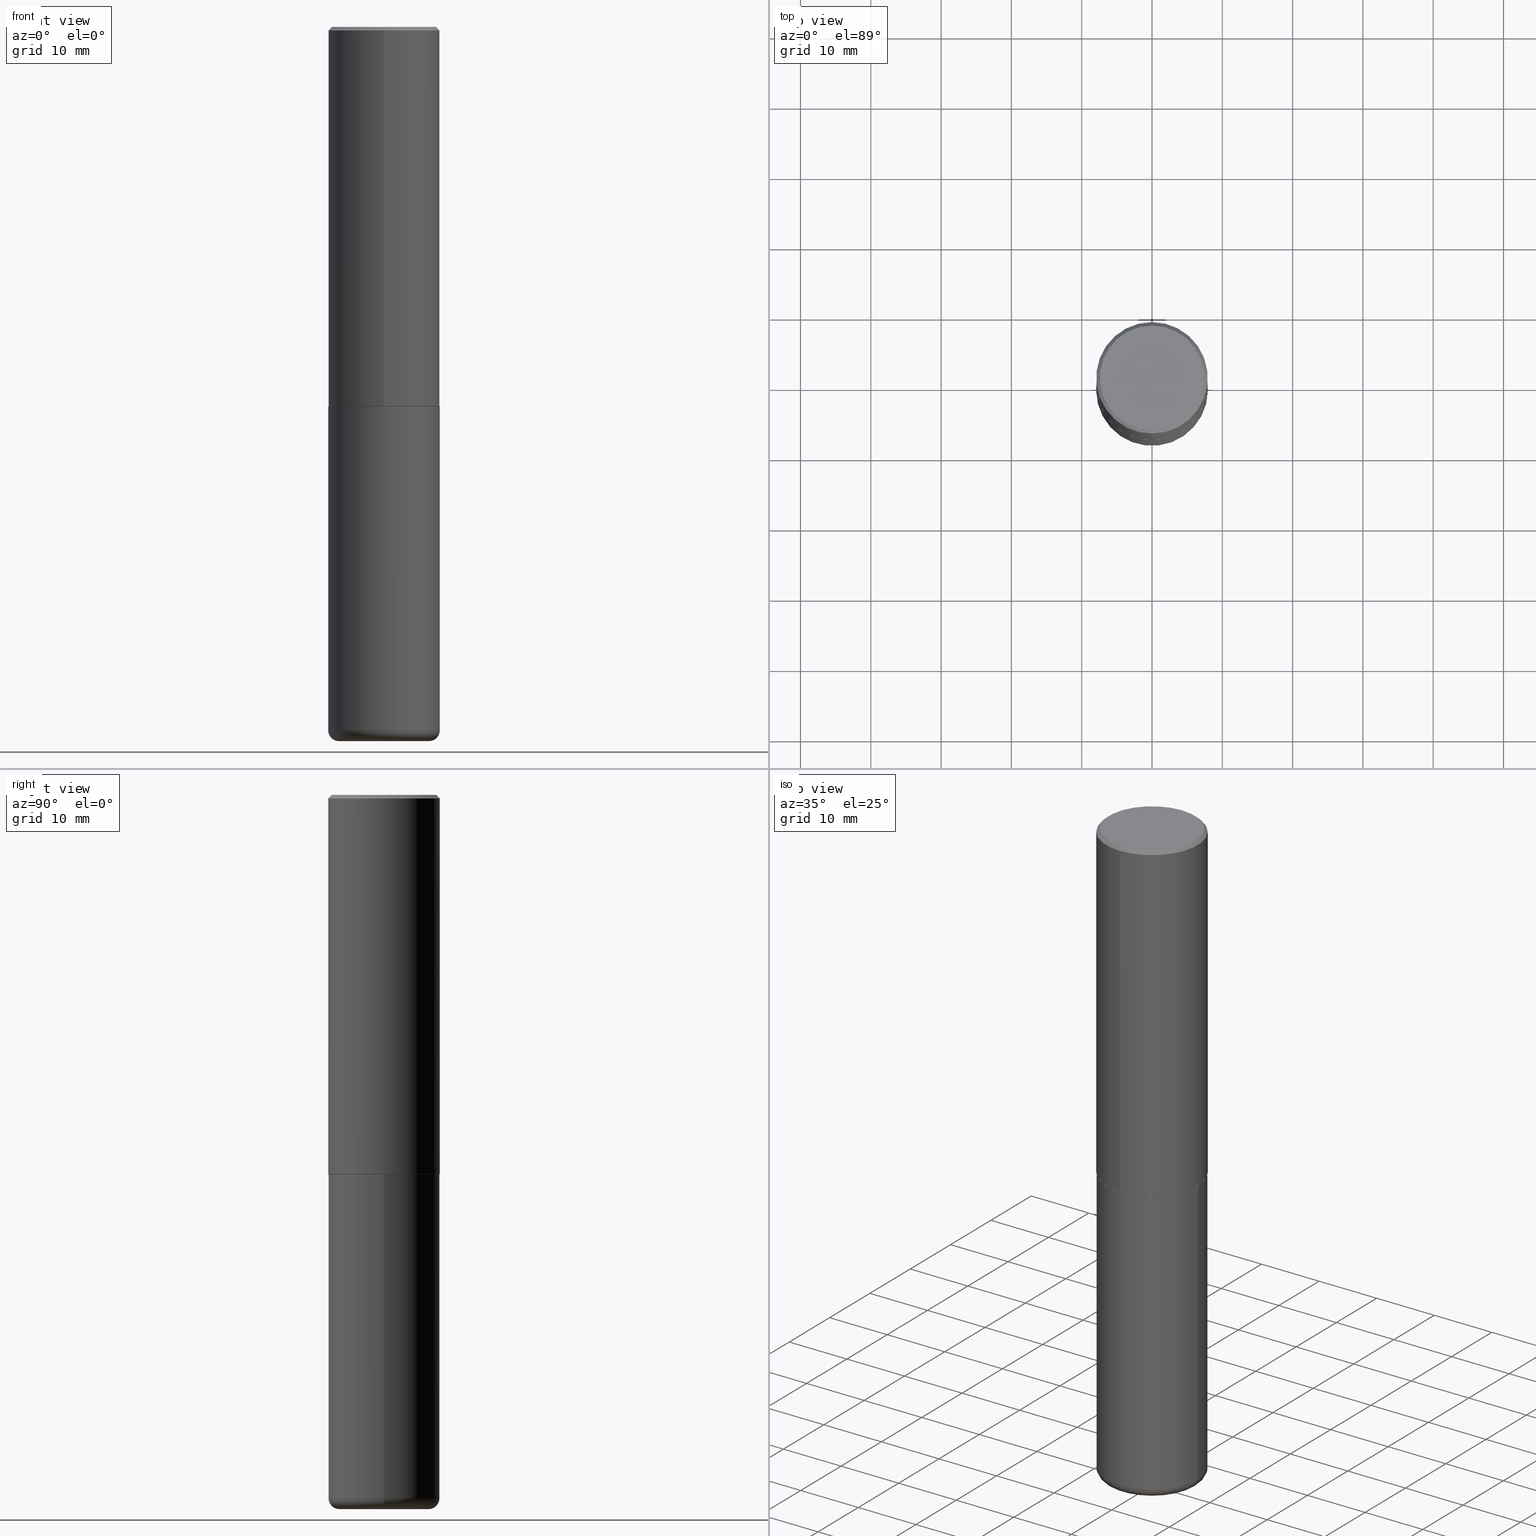
[diagram: canonical four-view strip — front | top / right | iso, engineering-drawing reading convention]
A machine part, canonical four-view strip (front | top / right | iso — engineering-drawing reading convention). The complete STEP part file that produces these views, byte-faithful:
ISO-10303-21;
HEADER;
FILE_DESCRIPTION (( 'STEP AP203' ),
    '1' );
FILE_NAME ('37600.STEP',
    '2024-03-02T05:30:04',
    ( '' ),
    ( '' ),
    'SwSTEP 2.0',
    'SolidWorks 2023',
    '' );
FILE_SCHEMA (( 'CONFIG_CONTROL_DESIGN' ));
ENDSEC;

DATA;
#1 = AXIS2_PLACEMENT_3D ( 'NONE', #57, #167, #174 ) ;
#2 = DIRECTION ( 'NONE',  ( 6.982962677686265922E-15, 1.000000000000000000, -3.492364022149836358E-15 ) ) ;
#3 = EDGE_LOOP ( 'NONE', ( #254, #159, #224, #261 ) ) ;
#4 = LINE ( 'NONE', #130, #134 ) ;
#5 = DIRECTION ( 'NONE',  ( -2.444852431726452894E-29, 3.492364022149836358E-15, 1.000000000000000000 ) ) ;
#6 = DIRECTION ( 'NONE',  ( 1.000000000000000000, -6.982962677686265133E-15, 0.000000000000000000 ) ) ;
#7 = CIRCLE ( 'NONE', #257, 0.3125000000000002776 ) ;
#8 = CARTESIAN_POINT ( 'NONE',  ( -0.2525000000000000022, -1.185389768668500455E-14, -4.000000000000000888 ) ) ;
#9 = AXIS2_PLACEMENT_3D ( 'NONE', #69, #395, #193 ) ;
#10 = EDGE_CURVE ( 'NONE', #76, #321, #50, .T. ) ;
#11 = CARTESIAN_POINT ( 'NONE',  ( 9.635147096369438236E-29, -1.375643647504199401E-14, -3.939999999999999947 ) ) ;
#12 = APPROVAL_ROLE ( '' ) ;
#13 = FACE_OUTER_BOUND ( 'NONE', #328, .T. ) ;
#14 = ORIENTED_EDGE ( 'NONE', *, *, #42, .T. ) ;
#15 = EDGE_LOOP ( 'NONE', ( #360, #295, #334, #294 ) ) ;
#16 = CARTESIAN_POINT ( 'NONE',  ( 5.195311417418712329E-29, -7.421273547068401324E-15, -2.124999999999999556 ) ) ;
#17 = AXIS2_PLACEMENT_3D ( 'NONE', #336, #49, #403 ) ;
#18 = PRODUCT ( '37600', '37600', '', ( #115 ) ) ;
#19 = DIRECTION ( 'NONE',  ( -2.445468806185136597E-29, 3.491481338843145583E-15, 1.000000000000000000 ) ) ;
#20 = PLANE ( 'NONE',  #189 ) ;
#21 = DIRECTION ( 'NONE',  ( -2.445468806185136597E-29, 3.491481338843145583E-15, 1.000000000000000000 ) ) ;
#22 = TOROIDAL_SURFACE ( 'NONE', #1, 0.2525000000000000022, 0.06000000000000023370 ) ;
#23 = VECTOR ( 'NONE', #154, 39.37007874015748143 ) ;
#24 = APPROVAL_STATUS ( 'not_yet_approved' ) ;
#25 = APPLICATION_PROTOCOL_DEFINITION ( 'international standard', 'config_control_design', 1994, #122 ) ;
#26 = FACE_OUTER_BOUND ( 'NONE', #119, .T. ) ;
#27 = CC_DESIGN_PERSON_AND_ORGANIZATION_ASSIGNMENT ( #412, #270, ( #385 ) ) ;
#28 = DATE_AND_TIME ( #338, #222 ) ;
#29 = CARTESIAN_POINT ( 'NONE',  ( 2.213340621892763743E-15, 0.3114999999999925606, -2.125000000000000888 ) ) ;
#30 = LINE ( 'NONE', #281, #93 ) ;
#31 = AXIS2_PLACEMENT_3D ( 'NONE', #269, #142, #145 ) ;
#32 = CIRCLE ( 'NONE', #202, 0.3114999999999999991 ) ;
#33 = CC_DESIGN_DATE_AND_TIME_ASSIGNMENT ( #402, #390, ( #347 ) ) ;
#34 = DIRECTION ( 'NONE',  ( 1.000000000000000000, 0.000000000000000000, 0.000000000000000000 ) ) ;
#35 = DIRECTION ( 'NONE',  ( -2.445468806185136877E-29, 3.491481338843145188E-15, 1.000000000000000000 ) ) ;
#36 = ORIENTED_EDGE ( 'NONE', *, *, #70, .F. ) ;
#37 = DIRECTION ( 'NONE',  ( -4.937700262165053702E-15, -0.7071067811866175168, 0.7071067811864775177 ) ) ;
#38 = AXIS2_PLACEMENT_3D ( 'NONE', #406, #409, #366 ) ;
#39 = CC_DESIGN_APPROVAL ( #183, ( #347 ) ) ;
#40 = EDGE_LOOP ( 'NONE', ( #103, #101, #397, #256 ) ) ;
#41 = ORIENTED_EDGE ( 'NONE', *, *, #339, .T. ) ;
#42 = EDGE_CURVE ( 'NONE', #74, #68, #149, .T. ) ;
#43 = CARTESIAN_POINT ( 'NONE',  ( -0.2525000000000000022, -1.196231606724773985E-14, -3.939999999999999947 ) ) ;
#44 = EDGE_CURVE ( 'NONE', #133, #400, #228, .T. ) ;
#45 = VERTEX_POINT ( 'NONE', #358 ) ;
#46 = PERSON_AND_ORGANIZATION ( #272, #210 ) ;
#47 = ORIENTED_EDGE ( 'NONE', *, *, #205, .F. ) ;
#48 = PLANE ( 'NONE',  #104 ) ;
#49 = DIRECTION ( 'NONE',  ( -2.445468806185136597E-29, 3.491481338843145583E-15, 1.000000000000000000 ) ) ;
#50 = CIRCLE ( 'NONE', #283, 0.3125000000000000000 ) ;
#51 = DATE_AND_TIME ( #60, #235 ) ;
#52 = ADVANCED_FACE ( 'NONE', ( #331 ), #182, .T. ) ;
#53 = DIRECTION ( 'NONE',  ( -6.982962677686265133E-15, -1.000000000000000000, 3.492364022149836358E-15 ) ) ;
#54 = EDGE_CURVE ( 'NONE', #137, #332, #7, .T. ) ;
#55 = DIRECTION ( 'NONE',  ( -6.982962677686265922E-15, -1.000000000000000000, 3.492364022149836358E-15 ) ) ;
#56 = ADVANCED_FACE ( 'NONE', ( #26 ), #98, .T. ) ;
#57 = CARTESIAN_POINT ( 'NONE',  ( 9.635147096369438236E-29, -1.375643647504199401E-14, -3.939999999999999947 ) ) ;
#58 = AXIS2_PLACEMENT_3D ( 'NONE', #405, #271, #238 ) ;
#59 = VECTOR ( 'NONE', #375, 39.37007874015748143 ) ;
#60 = CALENDAR_DATE ( 2024, 2, 3 ) ;
#61 = CARTESIAN_POINT ( 'NONE',  ( 2.182175836776958741E-15, 0.3124999999999999445, -0.02000000000000116268 ) ) ;
#62 = CARTESIAN_POINT ( 'NONE',  ( -0.3125000000000001665, -1.153599042579167936E-14, -3.939999999999999947 ) ) ;
#63 = CLOSED_SHELL ( 'NONE', ( #100, #95, #170, #111, #52, #413 ) ) ;
#64 = LOCAL_TIME ( 0, 30, 4.000000000000000000, #320 ) ;
#65 =( NAMED_UNIT ( * ) SI_UNIT ( $, .STERADIAN. ) SOLID_ANGLE_UNIT ( ) );
#66 = PLANE ( 'NONE',  #324 ) ;
#67 = CARTESIAN_POINT ( 'NONE',  ( 4.889704863452922148E-31, -6.984728044299695791E-17, -0.02000000000000006981 ) ) ;
#68 = VERTEX_POINT ( 'NONE', #172 ) ;
#69 = CARTESIAN_POINT ( 'NONE',  ( 4.889704863452922148E-31, -6.984728044299695791E-17, -0.02000000000000006981 ) ) ;
#70 = EDGE_CURVE ( 'NONE', #230, #45, #195, .T. ) ;
#71 = ORIENTED_EDGE ( 'NONE', *, *, #125, .T. ) ;
#72 = EDGE_LOOP ( 'NONE', ( #262, #73, #289, #129 ) ) ;
#73 = ORIENTED_EDGE ( 'NONE', *, *, #352, .T. ) ;
#74 = VERTEX_POINT ( 'NONE', #335 ) ;
#75 = CIRCLE ( 'NONE', #156, 0.3125000000000000000 ) ;
#76 = VERTEX_POINT ( 'NONE', #341 ) ;
#77 = DIRECTION ( 'NONE',  ( 1.000000000000000000, -6.982962677686269866E-15, 0.000000000000000000 ) ) ;
#78 = CARTESIAN_POINT ( 'NONE',  ( -2.182175836776908254E-15, -0.3125000000000077161, -2.123999999999998334 ) ) ;
#79 = AXIS2_PLACEMENT_3D ( 'NONE', #114, #19, #308 ) ;
#80 = CYLINDRICAL_SURFACE ( 'NONE', #244, 0.3125000000000001665 ) ;
#81 = CC_DESIGN_APPROVAL ( #91, ( #296 ) ) ;
#82 = DIRECTION ( 'NONE',  ( -2.445468806185136597E-29, 3.491481338843145583E-15, 1.000000000000000000 ) ) ;
#83 = CC_DESIGN_DATE_AND_TIME_ASSIGNMENT ( #28, #240, ( #385 ) ) ;
#84 = DIRECTION ( 'NONE',  ( -2.444852431726452894E-29, 3.492364022149836358E-15, 1.000000000000000000 ) ) ;
#85 = COORDINATED_UNIVERSAL_TIME_OFFSET ( 5, 0, .BEHIND. ) ;
#86 = AXIS2_PLACEMENT_3D ( 'NONE', #255, #389, #6 ) ;
#87 = CONICAL_SURFACE ( 'NONE', #343, 0.3114999999999999991, 0.7853981633975507526 ) ;
#88 = DIRECTION ( 'NONE',  ( 2.444852431726452894E-29, -3.492364022149836358E-15, -1.000000000000000000 ) ) ;
#89 = VERTEX_POINT ( 'NONE', #143 ) ;
#90 = DIRECTION ( 'NONE',  ( -2.444852431726452894E-29, 3.492364022149836358E-15, 1.000000000000000000 ) ) ;
#91 = APPROVAL ( #380, 'UNSPECIFIED' ) ;
#92 = LINE ( 'NONE', #418, #59 ) ;
#93 = VECTOR ( 'NONE', #318, 39.37007874015748143 ) ;
#94 = CARTESIAN_POINT ( 'NONE',  ( 5.195311417418712329E-29, -7.421273547068401324E-15, -2.124999999999999556 ) ) ;
#95 = ADVANCED_FACE ( 'NONE', ( #232 ), #22, .T. ) ;
#96 = ORIENTED_EDGE ( 'NONE', *, *, #241, .T. ) ;
#97 = ORIENTED_EDGE ( 'NONE', *, *, #359, .F. ) ;
#98 = CONICAL_SURFACE ( 'NONE', #342, 0.3114999999999999991, 0.7853981633975507526 ) ;
#99 = CARTESIAN_POINT ( 'NONE',  ( 4.889704863452922148E-31, -6.984728044299695791E-17, -0.02000000000000006981 ) ) ;
#100 = ADVANCED_FACE ( 'NONE', ( #171 ), #275, .T. ) ;
#101 = ORIENTED_EDGE ( 'NONE', *, *, #287, .T. ) ;
#102 = DIMENSIONAL_EXPONENTS ( 1.000000000000000000, 0.000000000000000000, 0.000000000000000000, 0.000000000000000000, 0.000000000000000000, 0.000000000000000000, 0.000000000000000000 ) ;
#103 = ORIENTED_EDGE ( 'NONE', *, *, #42, .F. ) ;
#104 = AXIS2_PLACEMENT_3D ( 'NONE', #16, #267, #55 ) ;
#105 = AXIS2_PLACEMENT_3D ( 'NONE', #415, #88, #118 ) ;
#106 = EDGE_LOOP ( 'NONE', ( #325, #218 ) ) ;
#107 = EDGE_CURVE ( 'NONE', #68, #74, #208, .T. ) ;
#108 = CARTESIAN_POINT ( 'NONE',  ( 0.000000000000000000, 0.000000000000000000, 0.000000000000000000 ) ) ;
#109 = DATE_AND_TIME ( #404, #169 ) ;
#110 = CARTESIAN_POINT ( 'NONE',  ( 9.781875224740547508E-29, -1.396592535537258391E-14, -4.000000000000000888 ) ) ;
#111 = ADVANCED_FACE ( 'NONE', ( #140 ), #300, .T. ) ;
#112 = CARTESIAN_POINT ( 'NONE',  ( 9.635147096369438236E-29, -1.375643647504199401E-14, -3.939999999999999947 ) ) ;
#113 = ADVANCED_FACE ( 'NONE', ( #200 ), #236, .T. ) ;
#114 = CARTESIAN_POINT ( 'NONE',  ( 0.000000000000000000, 0.000000000000000000, 0.000000000000000000 ) ) ;
#115 = MECHANICAL_CONTEXT ( 'NONE', #122, 'mechanical' ) ;
#116 = MANIFOLD_SOLID_BREP ( 'Body-Move/Copy2[1]', #63 ) ;
#117 = CARTESIAN_POINT ( 'NONE',  ( 5.195311417418712329E-29, -7.421273547068401324E-15, -2.124999999999999556 ) ) ;
#118 = DIRECTION ( 'NONE',  ( 6.982962677686265133E-15, 1.000000000000000000, -3.496765431890256920E-15 ) ) ;
#119 = EDGE_LOOP ( 'NONE', ( #71, #219, #221, #136 ) ) ;
#120 = CC_DESIGN_PERSON_AND_ORGANIZATION_ASSIGNMENT ( #46, #368, ( #347 ) ) ;
#121 = LINE ( 'NONE', #185, #382 ) ;
#122 = APPLICATION_CONTEXT ( 'configuration controlled 3d designs of mechanical parts and assemblies' ) ;
#123 = DIRECTION ( 'NONE',  ( 1.000000000000000000, -6.982962677686269077E-15, 0.000000000000000000 ) ) ;
#124 = EDGE_LOOP ( 'NONE', ( #192, #388, #157, #36 ) ) ;
#125 = EDGE_CURVE ( 'NONE', #298, #89, #362, .T. ) ;
#126 = LINE ( 'NONE', #379, #234 ) ;
#127 = ADVANCED_FACE ( 'NONE', ( #311 ), #48, .F. ) ;
#128 = CIRCLE ( 'NONE', #310, 0.3125000000000002776 ) ;
#129 = ORIENTED_EDGE ( 'NONE', *, *, #364, .F. ) ;
#130 = CARTESIAN_POINT ( 'NONE',  ( 2.220446049250313475E-15, 0.3125000000000001665, -1.091363756921824478E-15 ) ) ;
#131 = CALENDAR_DATE ( 2024, 2, 3 ) ;
#132 = DIRECTION ( 'NONE',  ( -6.982962677686265133E-15, -1.000000000000000000, 3.492364022149836753E-15 ) ) ;
#133 = VERTEX_POINT ( 'NONE', #411 ) ;
#134 = VECTOR ( 'NONE', #297, 39.37007874015748143 ) ;
#135 = DIRECTION ( 'NONE',  ( -2.444852431726452894E-29, 3.492364022149836358E-15, 1.000000000000000000 ) ) ;
#136 = ORIENTED_EDGE ( 'NONE', *, *, #191, .F. ) ;
#137 = VERTEX_POINT ( 'NONE', #78 ) ;
#138 = ORIENTED_EDGE ( 'NONE', *, *, #398, .F. ) ;
#139 = EDGE_CURVE ( 'NONE', #361, #194, #155, .T. ) ;
#140 = FACE_OUTER_BOUND ( 'NONE', #416, .T. ) ;
#141 = COORDINATED_UNIVERSAL_TIME_OFFSET ( 5, 0, .BEHIND. ) ;
#142 = DIRECTION ( 'NONE',  ( -2.445468806185136597E-29, 3.491481338843145583E-15, 1.000000000000000000 ) ) ;
#143 = CARTESIAN_POINT ( 'NONE',  ( 2.216893335571564642E-15, 0.3114999999999925606, -2.125000000000000888 ) ) ;
#144 = PERSON_AND_ORGANIZATION_ROLE ( 'design_owner' ) ;
#145 = DIRECTION ( 'NONE',  ( 1.000000000000000000, -6.982962677686266711E-15, 4.876176775795936353E-29 ) ) ;
#146 = CARTESIAN_POINT ( 'NONE',  ( 2.220446049250340297E-15, 0.3124999999999928391, -2.124000000000000554 ) ) ;
#147 = ORIENTED_EDGE ( 'NONE', *, *, #70, .T. ) ;
#148 = DIRECTION ( 'NONE',  ( -1.000000000000000000, 6.982962677686265922E-15, -4.876176775795935793E-29 ) ) ;
#149 = CIRCLE ( 'NONE', #273, 0.2924999999999999822 ) ;
#150 = EDGE_CURVE ( 'NONE', #194, #45, #391, .T. ) ;
#151 = DIRECTION ( 'NONE',  ( -2.445468806185136597E-29, 3.491481338843145583E-15, 1.000000000000000000 ) ) ;
#152 = CC_DESIGN_PERSON_AND_ORGANIZATION_ASSIGNMENT ( #176, #144, ( #18 ) ) ;
#153 = EDGE_LOOP ( 'NONE', ( #250, #357, #351, #217 ) ) ;
#154 = DIRECTION ( 'NONE',  ( -2.444852431726452614E-29, 3.492364022149836358E-15, 1.000000000000000000 ) ) ;
#155 = CIRCLE ( 'NONE', #264, 0.2525000000000000022 ) ;
#156 = AXIS2_PLACEMENT_3D ( 'NONE', #346, #151, #123 ) ;
#157 = ORIENTED_EDGE ( 'NONE', *, *, #150, .T. ) ;
#158 = DIRECTION ( 'NONE',  ( 7.105427357601001859E-15, 1.000000000000000000, -3.491481338843145583E-15 ) ) ;
#159 = ORIENTED_EDGE ( 'NONE', *, *, #393, .T. ) ;
#160 = CC_DESIGN_PERSON_AND_ORGANIZATION_ASSIGNMENT ( #286, #291, ( #296 ) ) ;
#161 = CARTESIAN_POINT ( 'NONE',  ( 5.192866564986985411E-29, -7.417781183046251262E-15, -2.123999999999999666 ) ) ;
#162 = AXIS2_PLACEMENT_3D ( 'NONE', #330, #197, #253 ) ;
#163 = EDGE_CURVE ( 'NONE', #194, #361, #323, .T. ) ;
#164 = ORIENTED_EDGE ( 'NONE', *, *, #10, .F. ) ;
#165 = ORIENTED_EDGE ( 'NONE', *, *, #163, .F. ) ;
#166 = ADVANCED_FACE ( 'NONE', ( #168 ), #80, .T. ) ;
#167 = DIRECTION ( 'NONE',  ( -2.445468806185136597E-29, 3.491481338843145583E-15, 1.000000000000000000 ) ) ;
#168 = FACE_OUTER_BOUND ( 'NONE', #376, .T. ) ;
#169 = LOCAL_TIME ( 0, 30, 4.000000000000000000, #141 ) ;
#170 = ADVANCED_FACE ( 'NONE', ( #306 ), #20, .F. ) ;
#171 = FACE_OUTER_BOUND ( 'NONE', #153, .T. ) ;
#172 = CARTESIAN_POINT ( 'NONE',  ( 2.112346210000095838E-15, 0.2924999999999999822, -1.012721266631419361E-15 ) ) ;
#173 = AXIS2_PLACEMENT_3D ( 'NONE', #112, #21, #231 ) ;
#174 = DIRECTION ( 'NONE',  ( 1.000000000000000000, -6.982962677686264344E-15, 4.883557194083112340E-29 ) ) ;
#175 = AXIS2_PLACEMENT_3D ( 'NONE', #43, #158, #292 ) ;
#176 = PERSON_AND_ORGANIZATION ( #272, #210 ) ;
#177 = FACE_OUTER_BOUND ( 'NONE', #40, .T. ) ;
#178 = CARTESIAN_POINT ( 'NONE',  ( -2.175192874099219874E-15, -0.3115000000000074376, -2.124999999999998668 ) ) ;
#179 = CALENDAR_DATE ( 2024, 2, 3 ) ;
#180 = DIRECTION ( 'NONE',  ( -1.000000000000000000, 6.982962677686265922E-15, -4.876176775795935793E-29 ) ) ;
#181 = DIRECTION ( 'NONE',  ( -6.982962677686265922E-15, -1.000000000000000000, 3.507991003100177457E-15 ) ) ;
#182 = TOROIDAL_SURFACE ( 'NONE', #251, 0.2525000000000000022, 0.06000000000000023370 ) ;
#183 = APPROVAL ( #373, 'UNSPECIFIED' ) ;
#184 = CC_DESIGN_APPROVAL ( #220, ( #385 ) ) ;
#185 = CARTESIAN_POINT ( 'NONE',  ( 0.3125000000000000000, -2.182175836776958347E-15, 1.523805242436230075E-29 ) ) ;
#186 = CARTESIAN_POINT ( 'NONE',  ( -2.143905624303602824E-15, -0.3125000000000000555, -0.01999999999999897693 ) ) ;
#187 = ORIENTED_EDGE ( 'NONE', *, *, #225, .F. ) ;
#188 = DIRECTION ( 'NONE',  ( -2.444852431726452894E-29, 3.492364022149836358E-15, 1.000000000000000000 ) ) ;
#189 = AXIS2_PLACEMENT_3D ( 'NONE', #213, #209, #148 ) ;
#190 = EDGE_LOOP ( 'NONE', ( #384, #258, #47, #396 ) ) ;
#191 = EDGE_CURVE ( 'NONE', #298, #137, #126, .T. ) ;
#192 = ORIENTED_EDGE ( 'NONE', *, *, #393, .F. ) ;
#193 = DIRECTION ( 'NONE',  ( 6.982962677686265133E-15, 1.000000000000000000, -3.496765431890256920E-15 ) ) ;
#194 = VERTEX_POINT ( 'NONE', #284 ) ;
#195 = CIRCLE ( 'NONE', #173, 0.3125000000000000000 ) ;
#196 = CONICAL_SURFACE ( 'NONE', #105, 0.3125000000000000000, 0.7853981633974471688 ) ;
#197 = DIRECTION ( 'NONE',  ( -2.445468806185136597E-29, 3.491481338843145583E-15, 1.000000000000000000 ) ) ;
#198 = ORIENTED_EDGE ( 'NONE', *, *, #139, .F. ) ;
#199 = DIRECTION ( 'NONE',  ( -6.982962677686265922E-15, -1.000000000000000000, 3.496765431890253764E-15 ) ) ;
#200 = FACE_OUTER_BOUND ( 'NONE', #190, .T. ) ;
#201 = AXIS2_PLACEMENT_3D ( 'NONE', #367, #203, #204 ) ;
#202 = AXIS2_PLACEMENT_3D ( 'NONE', #377, #214, #181 ) ;
#203 = DIRECTION ( 'NONE',  ( -6.982962677686266711E-15, -1.000000000000000000, 3.491481338843145583E-15 ) ) ;
#204 = DIRECTION ( 'NONE',  ( 1.000000000000000000, -6.982962677686275388E-15, 0.000000000000000000 ) ) ;
#205 = EDGE_CURVE ( 'NONE', #321, #76, #317, .T. ) ;
#206 = DIRECTION ( 'NONE',  ( -6.982962677686265922E-15, -1.000000000000000000, 3.507991003100177457E-15 ) ) ;
#207 = PERSON_AND_ORGANIZATION_ROLE ( 'design_supplier' ) ;
#208 = CIRCLE ( 'NONE', #38, 0.2924999999999999822 ) ;
#209 = DIRECTION ( 'NONE',  ( 2.438088387897960049E-29, -3.491481338843145188E-15, -1.000000000000000000 ) ) ;
#210 = ORGANIZATION ( 'UNSPECIFIED', 'UNSPECIFIED', '' ) ;
#211 = APPROVAL_DATE_TIME ( #51, #183 ) ;
#212 = DIRECTION ( 'NONE',  ( 2.438088387897960049E-29, -3.491481338843145188E-15, -1.000000000000000000 ) ) ;
#213 = CARTESIAN_POINT ( 'NONE',  ( 5.196621213143414147E-29, -7.419397845041682046E-15, -2.124999999999999556 ) ) ;
#214 = DIRECTION ( 'NONE',  ( -2.444852431726452894E-29, 3.492364022149836358E-15, 1.000000000000000000 ) ) ;
#215 = CARTESIAN_POINT ( 'NONE',  ( 0.000000000000000000, 0.000000000000000000, 0.000000000000000000 ) ) ;
#216 = AXIS2_PLACEMENT_3D ( 'NONE', #314, #212, #180 ) ;
#217 = ORIENTED_EDGE ( 'NONE', *, *, #339, .F. ) ;
#218 = ORIENTED_EDGE ( 'NONE', *, *, #359, .T. ) ;
#219 = ORIENTED_EDGE ( 'NONE', *, *, #259, .T. ) ;
#220 = APPROVAL ( #24, 'UNSPECIFIED' ) ;
#221 = ORIENTED_EDGE ( 'NONE', *, *, #54, .F. ) ;
#222 = LOCAL_TIME ( 0, 30, 4.000000000000000000, #233 ) ;
#223 = DIRECTION ( 'NONE',  ( -6.982962677686265133E-15, -1.000000000000000000, 3.496765431890256920E-15 ) ) ;
#224 = ORIENTED_EDGE ( 'NONE', *, *, #276, .F. ) ;
#225 = EDGE_CURVE ( 'NONE', #230, #400, #92, .T. ) ;
#226 = DATE_AND_TIME ( #179, #326 ) ;
#227 = ORIENTED_EDGE ( 'NONE', *, *, #364, .T. ) ;
#228 = CIRCLE ( 'NONE', #86, 0.3125000000000000000 ) ;
#229 = APPROVAL_PERSON_ORGANIZATION ( #280, #183, #242 ) ;
#230 = VERTEX_POINT ( 'NONE', #62 ) ;
#231 = DIRECTION ( 'NONE',  ( 1.000000000000000000, -6.982962677686269077E-15, 0.000000000000000000 ) ) ;
#232 = FACE_OUTER_BOUND ( 'NONE', #3, .T. ) ;
#233 = COORDINATED_UNIVERSAL_TIME_OFFSET ( 5, 0, .BEHIND. ) ;
#234 = VECTOR ( 'NONE', #37, 39.37007874015748143 ) ;
#235 = LOCAL_TIME ( 0, 30, 4.000000000000000000, #85 ) ;
#236 = CYLINDRICAL_SURFACE ( 'NONE', #392, 0.3125000000000001665 ) ;
#237 = ADVANCED_FACE ( 'NONE', ( #177 ), #196, .T. ) ;
#238 = DIRECTION ( 'NONE',  ( -6.982962677686265922E-15, -1.000000000000000000, 3.507991003100177457E-15 ) ) ;
#239 = COORDINATED_UNIVERSAL_TIME_OFFSET ( 5, 0, .BEHIND. ) ;
#240 = DATE_TIME_ROLE ( 'classification_date' ) ;
#241 = EDGE_CURVE ( 'NONE', #137, #321, #312, .T. ) ;
#242 = APPROVAL_ROLE ( '' ) ;
#243 = DESIGN_CONTEXT ( 'detailed design', #263, 'design' ) ;
#244 = AXIS2_PLACEMENT_3D ( 'NONE', #337, #340, #53 ) ;
#245 = DIRECTION ( 'NONE',  ( 5.024295867788576727E-15, 0.7071067811866224018, 0.7071067811864726327 ) ) ;
#246 = EDGE_LOOP ( 'NONE', ( #299, #394 ) ) ;
#247 = FACE_OUTER_BOUND ( 'NONE', #313, .T. ) ;
#248 = ADVANCED_FACE ( 'NONE', ( #348 ), #87, .T. ) ;
#249 = DIRECTION ( 'NONE',  ( -6.982962677686265133E-15, -1.000000000000000000, 3.496765431890256920E-15 ) ) ;
#250 = ORIENTED_EDGE ( 'NONE', *, *, #276, .T. ) ;
#251 = AXIS2_PLACEMENT_3D ( 'NONE', #11, #371, #370 ) ;
#252 = CIRCLE ( 'NONE', #162, 0.3125000000000000000 ) ;
#253 = DIRECTION ( 'NONE',  ( 1.000000000000000000, -6.982962677686265133E-15, 0.000000000000000000 ) ) ;
#254 = ORIENTED_EDGE ( 'NONE', *, *, #163, .T. ) ;
#255 = CARTESIAN_POINT ( 'NONE',  ( 5.196621213143414147E-29, -7.419397845041682046E-15, -2.124999999999999556 ) ) ;
#256 = ORIENTED_EDGE ( 'NONE', *, *, #307, .F. ) ;
#257 = AXIS2_PLACEMENT_3D ( 'NONE', #161, #84, #199 ) ;
#258 = ORIENTED_EDGE ( 'NONE', *, *, #398, .T. ) ;
#259 = EDGE_CURVE ( 'NONE', #89, #332, #374, .T. ) ;
#260 = MANIFOLD_SOLID_BREP ( 'Body-Move/Copy2[2]', #407 ) ;
#261 = ORIENTED_EDGE ( 'NONE', *, *, #150, .F. ) ;
#262 = ORIENTED_EDGE ( 'NONE', *, *, #259, .F. ) ;
#263 = APPLICATION_CONTEXT ( 'configuration controlled 3d designs of mechanical parts and assemblies' ) ;
#264 = AXIS2_PLACEMENT_3D ( 'NONE', #110, #82, #77 ) ;
#265 = VECTOR ( 'NONE', #245, 39.37007874015748143 ) ;
#266 = PRODUCT_DEFINITION_SHAPE ( 'NONE', 'NONE',  #347 ) ;
#267 = DIRECTION ( 'NONE',  ( -2.444852431726452333E-29, 3.492364022149836358E-15, 1.000000000000000000 ) ) ;
#268 = APPROVAL_PERSON_ORGANIZATION ( #309, #220, #301 ) ;
#269 = CARTESIAN_POINT ( 'NONE',  ( 0.000000000000000000, 0.000000000000000000, 0.000000000000000000 ) ) ;
#270 = PERSON_AND_ORGANIZATION_ROLE ( 'classification_officer' ) ;
#271 = DIRECTION ( 'NONE',  ( -2.444852431726452894E-29, 3.492364022149836358E-15, 1.000000000000000000 ) ) ;
#272 = PERSON ( 'UNSPECIFIED', 'UNSPECIFIED', 'UNSPECIFIED', ('UNSPECIFIED'), ('UNSPECIFIED'), ('UNSPECIFIED') ) ;
#273 = AXIS2_PLACEMENT_3D ( 'NONE', #293, #5, #132 ) ;
#274 = AXIS2_PLACEMENT_3D ( 'NONE', #67, #383, #249 ) ;
#275 = CYLINDRICAL_SURFACE ( 'NONE', #31, 0.3125000000000000000 ) ;
#276 = EDGE_CURVE ( 'NONE', #45, #230, #75, .T. ) ;
#277 = APPROVAL_DATE_TIME ( #109, #220 ) ;
#278 = APPLICATION_PROTOCOL_DEFINITION ( 'international standard', 'config_control_design', 1994, #263 ) ;
#279 = DIRECTION ( 'NONE',  ( -6.982962677686265133E-15, -1.000000000000000000, 3.492364022149836358E-15 ) ) ;
#280 = PERSON_AND_ORGANIZATION ( #272, #210 ) ;
#281 = CARTESIAN_POINT ( 'NONE',  ( -2.143905624303602824E-15, -0.3125000000000000555, -0.01999999999999897693 ) ) ;
#282 = UNCERTAINTY_MEASURE_WITH_UNIT (LENGTH_MEASURE( 1.000000000000000082E-05 ), #285, 'distance_accuracy_value', 'NONE');
#283 = AXIS2_PLACEMENT_3D ( 'NONE', #99, #188, #223 ) ;
#284 = CARTESIAN_POINT ( 'NONE',  ( 0.2525000000000000022, -1.572912343148836720E-14, -4.000000000000000888 ) ) ;
#285 =( CONVERSION_BASED_UNIT ( 'INCH', #316 ) LENGTH_UNIT ( ) NAMED_UNIT ( #102 ) );
#286 = PERSON_AND_ORGANIZATION ( #272, #210 ) ;
#287 = EDGE_CURVE ( 'NONE', #74, #321, #30, .T. ) ;
#288 = DIRECTION ( 'NONE',  ( -6.982962677686265922E-15, -1.000000000000000000, 3.507991003100177457E-15 ) ) ;
#289 = ORIENTED_EDGE ( 'NONE', *, *, #191, .T. ) ;
#290 = PRODUCT_RELATED_PRODUCT_CATEGORY ( 'detail', '', ( #18 ) ) ;
#291 = PERSON_AND_ORGANIZATION_ROLE ( 'creator' ) ;
#292 = DIRECTION ( 'NONE',  ( -1.000000000000000000, 7.105427357600997914E-15, 0.000000000000000000 ) ) ;
#293 = CARTESIAN_POINT ( 'NONE',  ( -2.150299018297948745E-46, 3.071607443834507134E-32, 8.795209847407834549E-18 ) ) ;
#294 = ORIENTED_EDGE ( 'NONE', *, *, #10, .T. ) ;
#295 = ORIENTED_EDGE ( 'NONE', *, *, #107, .F. ) ;
#296 = PRODUCT_DEFINITION_FORMATION_WITH_SPECIFIED_SOURCE ( 'ANY', '', #18, .NOT_KNOWN. ) ;
#297 = DIRECTION ( 'NONE',  ( -2.444852431726452614E-29, 3.492364022149836358E-15, 1.000000000000000000 ) ) ;
#298 = VERTEX_POINT ( 'NONE', #178 ) ;
#299 = ORIENTED_EDGE ( 'NONE', *, *, #125, .F. ) ;
#300 = CYLINDRICAL_SURFACE ( 'NONE', #79, 0.3125000000000000000 ) ;
#301 = APPROVAL_ROLE ( '' ) ;
#302 = PERSON_AND_ORGANIZATION ( #272, #210 ) ;
#303 = DIRECTION ( 'NONE',  ( -2.444852431726452894E-29, 3.492364022149836358E-15, 1.000000000000000000 ) ) ;
#304 = ADVANCED_BREP_SHAPE_REPRESENTATION ( '37600', ( #116, #260, #401 ), #369 ) ;
#305 = PLANE ( 'NONE',  #216 ) ;
#306 = FACE_OUTER_BOUND ( 'NONE', #106, .T. ) ;
#307 = EDGE_CURVE ( 'NONE', #68, #76, #350, .T. ) ;
#308 = DIRECTION ( 'NONE',  ( 1.000000000000000000, -6.982962677686266711E-15, 4.876176775795936353E-29 ) ) ;
#309 = PERSON_AND_ORGANIZATION ( #272, #210 ) ;
#310 = AXIS2_PLACEMENT_3D ( 'NONE', #387, #135, #327 ) ;
#311 = FACE_OUTER_BOUND ( 'NONE', #246, .T. ) ;
#312 = LINE ( 'NONE', #319, #23 ) ;
#313 = EDGE_LOOP ( 'NONE', ( #355, #14 ) ) ;
#314 = CARTESIAN_POINT ( 'NONE',  ( 3.737869654564020541E-29, -2.262128533529896139E-14, -4.000000000000000000 ) ) ;
#315 = CARTESIAN_POINT ( 'NONE',  ( 2.042516583223232540E-15, 0.2924999999999999822, -1.017118871555123169E-15 ) ) ;
#316 = LENGTH_MEASURE_WITH_UNIT ( LENGTH_MEASURE( 0.02539999999999999897 ), #344 );
#317 = CIRCLE ( 'NONE', #274, 0.3125000000000000000 ) ;
#318 = DIRECTION ( 'NONE',  ( -4.851104656540957964E-15, -0.7071067811865491270, -0.7071067811865459074 ) ) ;
#319 = CARTESIAN_POINT ( 'NONE',  ( -2.182175836776959136E-15, -0.3125000000000001665, 1.091363756921824478E-15 ) ) ;
#320 = COORDINATED_UNIVERSAL_TIME_OFFSET ( 5, 0, .BEHIND. ) ;
#321 = VERTEX_POINT ( 'NONE', #186 ) ;
#322 = CC_DESIGN_PERSON_AND_ORGANIZATION_ASSIGNMENT ( #302, #207, ( #296 ) ) ;
#323 = CIRCLE ( 'NONE', #17, 0.2525000000000000022 ) ;
#324 = AXIS2_PLACEMENT_3D ( 'NONE', #315, #345, #2 ) ;
#325 = ORIENTED_EDGE ( 'NONE', *, *, #44, .T. ) ;
#326 = LOCAL_TIME ( 0, 30, 4.000000000000000000, #239 ) ;
#327 = DIRECTION ( 'NONE',  ( -6.982962677686265922E-15, -1.000000000000000000, 3.496765431890253764E-15 ) ) ;
#328 = EDGE_LOOP ( 'NONE', ( #165, #198 ) ) ;
#329 = ADVANCED_FACE ( 'NONE', ( #247 ), #66, .F. ) ;
#330 = CARTESIAN_POINT ( 'NONE',  ( 5.196621213143414147E-29, -7.419397845041682046E-15, -2.124999999999999556 ) ) ;
#331 = FACE_OUTER_BOUND ( 'NONE', #124, .T. ) ;
#332 = VERTEX_POINT ( 'NONE', #146 ) ;
#333 = CIRCLE ( 'NONE', #175, 0.06000000000000021289 ) ;
#334 = ORIENTED_EDGE ( 'NONE', *, *, #307, .T. ) ;
#335 = CARTESIAN_POINT ( 'NONE',  ( -2.075300644325887493E-15, -0.2924999999999999822, 1.030311686326234990E-15 ) ) ;
#336 = CARTESIAN_POINT ( 'NONE',  ( 9.781875224740547508E-29, -1.396592535537258391E-14, -4.000000000000000888 ) ) ;
#337 = CARTESIAN_POINT ( 'NONE',  ( 0.000000000000000000, 0.000000000000000000, 0.000000000000000000 ) ) ;
#338 = CALENDAR_DATE ( 2024, 2, 3 ) ;
#339 = EDGE_CURVE ( 'NONE', #45, #133, #121, .T. ) ;
#340 = DIRECTION ( 'NONE',  ( -2.444852431726452894E-29, 3.492364022149836358E-15, 1.000000000000000000 ) ) ;
#341 = CARTESIAN_POINT ( 'NONE',  ( 2.182175836776958741E-15, 0.3124999999999999445, -0.02000000000000116268 ) ) ;
#342 = AXIS2_PLACEMENT_3D ( 'NONE', #117, #303, #206 ) ;
#343 = AXIS2_PLACEMENT_3D ( 'NONE', #94, #90, #288 ) ;
#344 =( LENGTH_UNIT ( ) NAMED_UNIT ( * ) SI_UNIT ( $, .METRE. ) );
#345 = DIRECTION ( 'NONE',  ( 2.444852431726452333E-29, -3.492364022149836358E-15, -1.000000000000000000 ) ) ;
#346 = CARTESIAN_POINT ( 'NONE',  ( 9.635147096369438236E-29, -1.375643647504199401E-14, -3.939999999999999947 ) ) ;
#347 = PRODUCT_DEFINITION ( 'UNKNOWN', '', #296, #243 ) ;
#348 = FACE_OUTER_BOUND ( 'NONE', #72, .T. ) ;
#349 = APPROVAL_PERSON_ORGANIZATION ( #372, #91, #12 ) ;
#350 = LINE ( 'NONE', #61, #363 ) ;
#351 = ORIENTED_EDGE ( 'NONE', *, *, #44, .F. ) ;
#352 = EDGE_CURVE ( 'NONE', #89, #298, #32, .T. ) ;
#353 = DIRECTION ( 'NONE',  ( 4.937700262164541731E-15, 0.7071067811865442421, -0.7071067811865507924 ) ) ;
#354 = FACE_OUTER_BOUND ( 'NONE', #15, .T. ) ;
#355 = ORIENTED_EDGE ( 'NONE', *, *, #107, .T. ) ;
#356 = CARTESIAN_POINT ( 'NONE',  ( -0.3125000000000000000, -8.367471110791524949E-15, -2.124999999999999556 ) ) ;
#357 = ORIENTED_EDGE ( 'NONE', *, *, #225, .T. ) ;
#358 = CARTESIAN_POINT ( 'NONE',  ( 0.3125000000000001665, -1.593861231181895394E-14, -3.939999999999999947 ) ) ;
#359 = EDGE_CURVE ( 'NONE', #400, #133, #252, .T. ) ;
#360 = ORIENTED_EDGE ( 'NONE', *, *, #287, .F. ) ;
#361 = VERTEX_POINT ( 'NONE', #8 ) ;
#362 = CIRCLE ( 'NONE', #58, 0.3114999999999999991 ) ;
#363 = VECTOR ( 'NONE', #353, 39.37007874015748143 ) ;
#364 = EDGE_CURVE ( 'NONE', #332, #137, #128, .T. ) ;
#365 = DIRECTION ( 'NONE',  ( -2.444852431726452894E-29, 3.492364022149836358E-15, 1.000000000000000000 ) ) ;
#366 = DIRECTION ( 'NONE',  ( -6.982962677686265133E-15, -1.000000000000000000, 3.492364022149836753E-15 ) ) ;
#367 = CARTESIAN_POINT ( 'NONE',  ( 0.2525000000000000022, -1.551963455115777730E-14, -3.939999999999999947 ) ) ;
#368 = PERSON_AND_ORGANIZATION_ROLE ( 'creator' ) ;
#369 =( GEOMETRIC_REPRESENTATION_CONTEXT ( 3 ) GLOBAL_UNCERTAINTY_ASSIGNED_CONTEXT ( ( #282 ) ) GLOBAL_UNIT_ASSIGNED_CONTEXT ( ( #285, #378, #65 ) ) REPRESENTATION_CONTEXT ( 'NONE', 'WORKASPACE' ) );
#370 = DIRECTION ( 'NONE',  ( 1.000000000000000000, -6.982962677686264344E-15, 4.883557194083112340E-29 ) ) ;
#371 = DIRECTION ( 'NONE',  ( -2.445468806185136597E-29, 3.491481338843145583E-15, 1.000000000000000000 ) ) ;
#372 = PERSON_AND_ORGANIZATION ( #272, #210 ) ;
#373 = APPROVAL_STATUS ( 'not_yet_approved' ) ;
#374 = LINE ( 'NONE', #29, #265 ) ;
#375 = DIRECTION ( 'NONE',  ( -2.445468806185136877E-29, 3.491481338843145188E-15, 1.000000000000000000 ) ) ;
#376 = EDGE_LOOP ( 'NONE', ( #138, #227, #96, #164 ) ) ;
#377 = CARTESIAN_POINT ( 'NONE',  ( 5.195311417418712329E-29, -7.421273547068401324E-15, -2.124999999999999556 ) ) ;
#378 =( NAMED_UNIT ( * ) PLANE_ANGLE_UNIT ( ) SI_UNIT ( $, .RADIAN. ) );
#379 = CARTESIAN_POINT ( 'NONE',  ( -2.175192874099219874E-15, -0.3115000000000074376, -2.124999999999998668 ) ) ;
#380 = APPROVAL_STATUS ( 'not_yet_approved' ) ;
#381 = ADVANCED_FACE ( 'NONE', ( #354 ), #408, .T. ) ;
#382 = VECTOR ( 'NONE', #35, 39.37007874015748143 ) ;
#383 = DIRECTION ( 'NONE',  ( -2.444852431726452894E-29, 3.492364022149836358E-15, 1.000000000000000000 ) ) ;
#384 = ORIENTED_EDGE ( 'NONE', *, *, #54, .T. ) ;
#385 = SECURITY_CLASSIFICATION ( '', '', #386 ) ;
#386 = SECURITY_CLASSIFICATION_LEVEL ( 'unclassified' ) ;
#387 = CARTESIAN_POINT ( 'NONE',  ( 5.192866564986985411E-29, -7.417781183046251262E-15, -2.123999999999999666 ) ) ;
#388 = ORIENTED_EDGE ( 'NONE', *, *, #139, .T. ) ;
#389 = DIRECTION ( 'NONE',  ( -2.445468806185136597E-29, 3.491481338843145583E-15, 1.000000000000000000 ) ) ;
#390 = DATE_TIME_ROLE ( 'creation_date' ) ;
#391 = CIRCLE ( 'NONE', #201, 0.06000000000000021289 ) ;
#392 = AXIS2_PLACEMENT_3D ( 'NONE', #108, #365, #279 ) ;
#393 = EDGE_CURVE ( 'NONE', #361, #230, #333, .T. ) ;
#394 = ORIENTED_EDGE ( 'NONE', *, *, #352, .F. ) ;
#395 = DIRECTION ( 'NONE',  ( 2.444852431726452894E-29, -3.492364022149836358E-15, -1.000000000000000000 ) ) ;
#396 = ORIENTED_EDGE ( 'NONE', *, *, #241, .F. ) ;
#397 = ORIENTED_EDGE ( 'NONE', *, *, #205, .T. ) ;
#398 = EDGE_CURVE ( 'NONE', #332, #76, #4, .T. ) ;
#399 = APPROVAL_DATE_TIME ( #226, #91 ) ;
#400 = VERTEX_POINT ( 'NONE', #356 ) ;
#401 = AXIS2_PLACEMENT_3D ( 'NONE', #215, #414, #34 ) ;
#402 = DATE_AND_TIME ( #131, #64 ) ;
#403 = DIRECTION ( 'NONE',  ( 1.000000000000000000, -6.982962677686269866E-15, 0.000000000000000000 ) ) ;
#404 = CALENDAR_DATE ( 2024, 2, 3 ) ;
#405 = CARTESIAN_POINT ( 'NONE',  ( 5.195311417418712329E-29, -7.421273547068401324E-15, -2.124999999999999556 ) ) ;
#406 = CARTESIAN_POINT ( 'NONE',  ( -2.150299018297948745E-46, 3.071607443834507134E-32, 8.795209847407834549E-18 ) ) ;
#407 = CLOSED_SHELL ( 'NONE', ( #56, #113, #237, #381, #166, #248, #127, #329 ) ) ;
#408 = CONICAL_SURFACE ( 'NONE', #9, 0.3125000000000000000, 0.7853981633974471688 ) ;
#409 = DIRECTION ( 'NONE',  ( -2.444852431726452894E-29, 3.492364022149836358E-15, 1.000000000000000000 ) ) ;
#410 = SHAPE_DEFINITION_REPRESENTATION ( #266, #304 ) ;
#411 = CARTESIAN_POINT ( 'NONE',  ( 0.3125000000000000000, -9.601573681818640393E-15, -2.124999999999999556 ) ) ;
#412 = PERSON_AND_ORGANIZATION ( #272, #210 ) ;
#413 = ADVANCED_FACE ( 'NONE', ( #13 ), #305, .T. ) ;
#414 = DIRECTION ( 'NONE',  ( 0.000000000000000000, 0.000000000000000000, 1.000000000000000000 ) ) ;
#415 = CARTESIAN_POINT ( 'NONE',  ( 4.889704863452922148E-31, -6.984728044299695791E-17, -0.02000000000000006981 ) ) ;
#416 = EDGE_LOOP ( 'NONE', ( #187, #147, #41, #97 ) ) ;
#417 = CC_DESIGN_SECURITY_CLASSIFICATION ( #385, ( #296 ) ) ;
#418 = CARTESIAN_POINT ( 'NONE',  ( -0.3125000000000000000, 2.220446049250313081E-15, -1.537167215704658232E-29 ) ) ;
ENDSEC;
END-ISO-10303-21;
